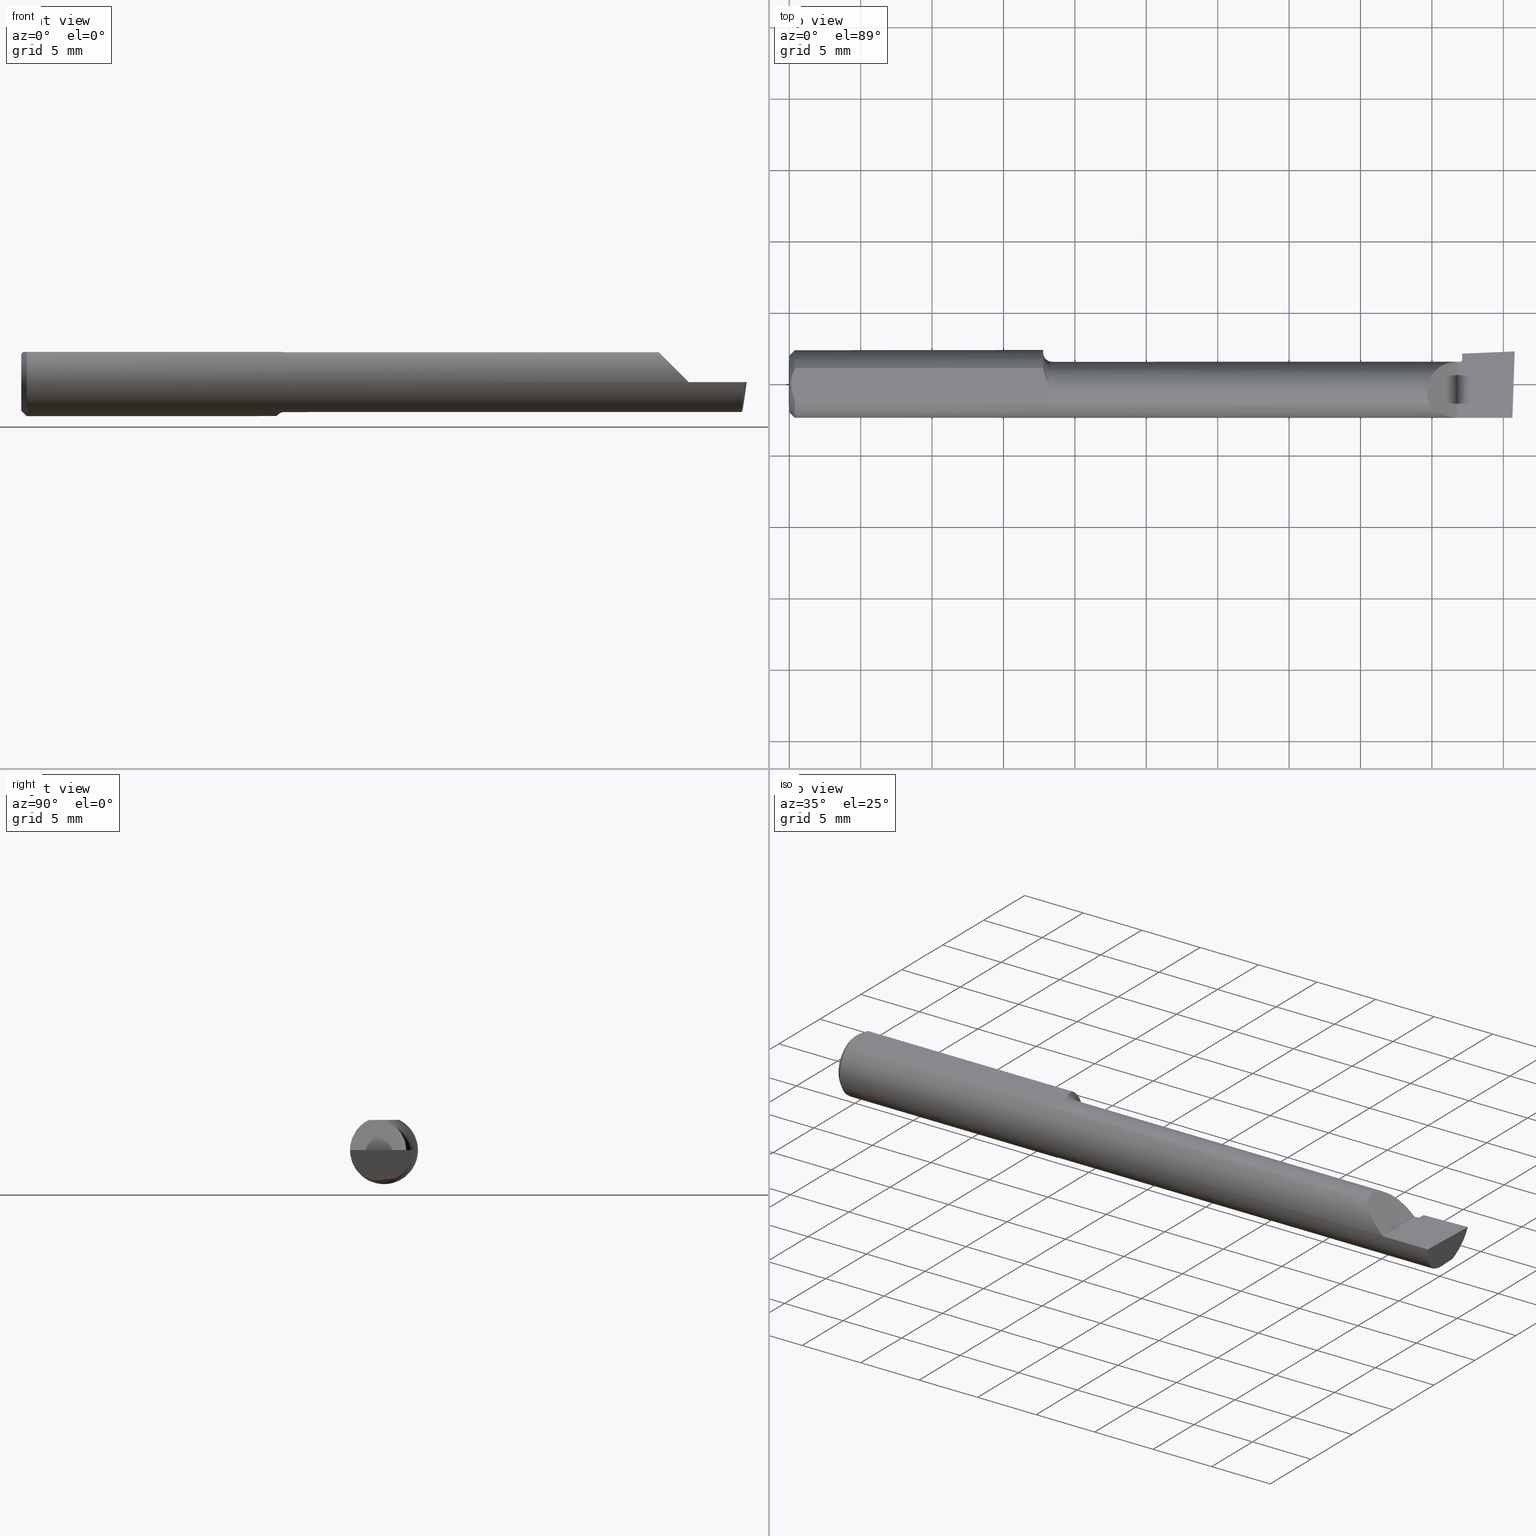
[diagram: canonical four-view strip — front | top / right | iso, engineering-drawing reading convention]
A machine part, canonical four-view strip (front | top / right | iso — engineering-drawing reading convention). The complete STEP part file that produces these views, byte-faithful:
ISO-10303-21;
HEADER;
FILE_DESCRIPTION (( 'STEP AP203' ),
    '1' );
FILE_NAME ('210243-BB1812.STEP',
    '2024-04-17T22:08:03',
    ( '' ),
    ( '' ),
    'SwSTEP 2.0',
    'SolidWorks 2022',
    '' );
FILE_SCHEMA (( 'CONFIG_CONTROL_DESIGN' ));
ENDSEC;

DATA;
#1 = DIRECTION ( 'NONE',  ( 0.000000000000000000, 0.000000000000000000, -1.000000000000000000 ) ) ;
#2 = ORIENTED_EDGE ( 'NONE', *, *, #258, .F. ) ;
#3 = LOCAL_TIME ( 15, 8, 3.000000000000000000, #482 ) ;
#4 = DIRECTION ( 'NONE',  ( 0.000000000000000000, -1.000000000000000000, 0.000000000000000000 ) ) ;
#5 = ORIENTED_EDGE ( 'NONE', *, *, #629, .F. ) ;
#6 = CARTESIAN_POINT ( 'NONE',  ( 0.7106015631409865474, -0.03939123913276627170, -0.08506160841583897125 ) ) ;
#7 = DIRECTION ( 'NONE',  ( -1.000000000000000000, -0.000000000000000000, -0.000000000000000000 ) ) ;
#8 = FACE_OUTER_BOUND ( 'NONE', #498, .T. ) ;
#9 = B_SPLINE_CURVE_WITH_KNOTS ( 'NONE', 3,
 ( #469, #97, #582, #379 ),
 .UNSPECIFIED., .F., .F.,
 ( 4, 4 ),
 ( 0.001281379682259375539, 0.001681479309652208218 ),
 .UNSPECIFIED. ) ;
#10 = CARTESIAN_POINT ( 'NONE',  ( 1.986324320446372305, -0.01381836679759350546, -0.08208644312275988064 ) ) ;
#11 = VERTEX_POINT ( 'NONE', #101 ) ;
#12 = EDGE_CURVE ( 'NONE', #231, #600, #418, .T. ) ;
#13 = CARTESIAN_POINT ( 'NONE',  ( 1.852369559014393374, -0.004255493194176700709, -0.08124980009172969031 ) ) ;
#14 = VECTOR ( 'NONE', #535, 39.37007874015748143 ) ;
#15 = AXIS2_PLACEMENT_3D ( 'NONE', #122, #220, #307 ) ;
#16 = ORIENTED_EDGE ( 'NONE', *, *, #245, .F. ) ;
#17 = DIRECTION ( 'NONE',  ( -1.000000000000000000, -0.000000000000000000, -0.000000000000000000 ) ) ;
#18 = ORIENTED_EDGE ( 'NONE', *, *, #259, .F. ) ;
#19 = APPROVAL_STATUS ( 'not_yet_approved' ) ;
#20 = CARTESIAN_POINT ( 'NONE',  ( 1.906245324762311455, 0.08577087285469074673, -1.868634782302818344E-17 ) ) ;
#21 = CARTESIAN_POINT ( 'NONE',  ( 1.985638364069036266, -0.02892578711483840409, -0.08340817113563980811 ) ) ;
#22 = VECTOR ( 'NONE', #270, 39.37007874015748143 ) ;
#23 = APPROVAL_STATUS ( 'not_yet_approved' ) ;
#24 = CARTESIAN_POINT ( 'NONE',  ( 1.988502654630791344, 0.03415700188930223535, -0.07788914223418023919 ) ) ;
#25 = FACE_OUTER_BOUND ( 'NONE', #148, .T. ) ;
#26 = CARTESIAN_POINT ( 'NONE',  ( 0.7165794261439658586, -0.02814343689618097749, 0.08360000000000003539 ) ) ;
#27 = CARTESIAN_POINT ( 'NONE',  ( 1.840000000000000080, -0.09359807690332104524, 0.0005999999999995612792 ) ) ;
#28 = CARTESIAN_POINT ( 'NONE',  ( 0.01500000000000024925, 0.04209513035969833505, 0.08360000000000004927 ) ) ;
#29 = CARTESIAN_POINT ( 'NONE',  ( 1.988502654630791344, 0.03415700188930223535, -0.07788914223418023919 ) ) ;
#30 = PLANE ( 'NONE',  #448 ) ;
#31 = B_SPLINE_CURVE_WITH_KNOTS ( 'NONE', 3,
 ( #150, #56, #244, #13, #342, #252 ),
 .UNSPECIFIED., .F., .F.,
 ( 4, 2, 4 ),
 ( 0.0003895378991270387402, 0.0007684350305820206780, 0.001147332162037002562 ),
 .UNSPECIFIED. ) ;
#32 = DIRECTION ( 'NONE',  ( 0.000000000000000000, 0.08715574274765137963, -0.9961946980917462113 ) ) ;
#33 = CC_DESIGN_PERSON_AND_ORGANIZATION_ASSIGNMENT ( #392, #551, ( #225 ) ) ;
#34 = CARTESIAN_POINT ( 'NONE',  ( 1.990029385046014232, -0.09360000000000003040, -0.02942396326758906638 ) ) ;
#35 = ADVANCED_FACE ( 'NONE', ( #8 ), #569, .F. ) ;
#36 = VERTEX_POINT ( 'NONE', #454 ) ;
#37 = EDGE_CURVE ( 'NONE', #90, #231, #105, .T. ) ;
#38 = DIRECTION ( 'NONE',  ( -1.000000000000000000, 4.268512490100411279E-18, 0.000000000000000000 ) ) ;
#39 = PLANE ( 'NONE',  #391 ) ;
#40 = ORIENTED_EDGE ( 'NONE', *, *, #277, .T. ) ;
#41 = CARTESIAN_POINT ( 'NONE',  ( 0.7192658722290595774, -0.05486689380272752325, -0.07584023785067360579 ) ) ;
#42 = CIRCLE ( 'NONE', #81, 0.1073999999999997734 ) ;
#43 = CARTESIAN_POINT ( 'NONE',  ( 2.000000000000000000, -0.01381836679759350546, -0.08208644312275988064 ) ) ;
#44 = ORIENTED_EDGE ( 'NONE', *, *, #519, .T. ) ;
#45 = CARTESIAN_POINT ( 'NONE',  ( 1.840000000000000080, 0.09359999999999998876, -1.868634782302818344E-17 ) ) ;
#46 = DIRECTION ( 'NONE',  ( 4.268512490100411279E-18, 1.000000000000000000, 0.000000000000000000 ) ) ;
#47 = ORIENTED_EDGE ( 'NONE', *, *, #149, .T. ) ;
#48 = ORIENTED_EDGE ( 'NONE', *, *, #365, .T. ) ;
#49 = AXIS2_PLACEMENT_3D ( 'NONE', #476, #53, #242 ) ;
#50 = CC_DESIGN_APPROVAL ( #602, ( #260 ) ) ;
#51 = CARTESIAN_POINT ( 'NONE',  ( 2.000000000000000000, 0.04209513035969836975, 0.08360000000000000764 ) ) ;
#52 = AXIS2_PLACEMENT_3D ( 'NONE', #359, #32, #269 ) ;
#53 = DIRECTION ( 'NONE',  ( -1.000000000000000000, 4.268512490100411279E-18, -0.000000000000000000 ) ) ;
#54 = LENGTH_MEASURE_WITH_UNIT ( LENGTH_MEASURE( 0.02539999999999999897 ), #288 );
#55 = APPROVAL ( #546, 'UNSPECIFIED' ) ;
#56 = CARTESIAN_POINT ( 'NONE',  ( 1.854999999999999094, 0.01028169154338317258, -0.07997796122761119397 ) ) ;
#57 = VERTEX_POINT ( 'NONE', #603 ) ;
#58 = EDGE_CURVE ( 'NONE', #109, #254, #276, .T. ) ;
#59 = CALENDAR_DATE ( 2024, 17, 4 ) ;
#60 = DIRECTION ( 'NONE',  ( 0.000000000000000000, 0.000000000000000000, 1.000000000000000000 ) ) ;
#61 = ORIENTED_EDGE ( 'NONE', *, *, #629, .T. ) ;
#62 = APPROVAL_DATE_TIME ( #255, #602 ) ;
#63 = CARTESIAN_POINT ( 'NONE',  ( 1.766692136939142621, -0.05743333333333168478, 0.07390786306085683766 ) ) ;
#64 = VECTOR ( 'NONE', #517, 39.37007874015748143 ) ;
#65 = ORIENTED_EDGE ( 'NONE', *, *, #420, .T. ) ;
#66 = ORIENTED_EDGE ( 'NONE', *, *, #622, .F. ) ;
#67 = PERSON_AND_ORGANIZATION ( #507, #201 ) ;
#68 = CARTESIAN_POINT ( 'NONE',  ( 1.985817582123950320, -0.05743333333333396767, -0.07390786306085539437 ) ) ;
#69 = PERSON_AND_ORGANIZATION ( #507, #201 ) ;
#70 = CARTESIAN_POINT ( 'NONE',  ( 1.840000000000000080, 0.06139999999999985053, -1.868634782302818344E-17 ) ) ;
#71 = VERTEX_POINT ( 'NONE', #70 ) ;
#72 = LINE ( 'NONE', #514, #329 ) ;
#73 = CARTESIAN_POINT ( 'NONE',  ( 0.7129080780883870760, -0.002953318044166630772, 0.08360000000000003539 ) ) ;
#74 = FACE_OUTER_BOUND ( 'NONE', #301, .T. ) ;
#75 = CARTESIAN_POINT ( 'NONE',  ( 0.7130603284648847628, -0.03865296673493581053, 0.08360000000000003539 ) ) ;
#76 = PLANE ( 'NONE',  #456 ) ;
#77 = CARTESIAN_POINT ( 'NONE',  ( 1.849999999999999867, 0.06139999999999991298, -1.868634782302819884E-17 ) ) ;
#78 = LOCAL_TIME ( 15, 8, 3.000000000000000000, #396 ) ;
#79 = APPROVAL ( #19, 'UNSPECIFIED' ) ;
#80 = PLANE ( 'NONE',  #52 ) ;
#81 = AXIS2_PLACEMENT_3D ( 'NONE', #471, #235, #4 ) ;
#82 = PLANE ( 'NONE',  #539 ) ;
#83 = EDGE_CURVE ( 'NONE', #278, #625, #197, .T. ) ;
#84 = ORIENTED_EDGE ( 'NONE', *, *, #585, .F. ) ;
#85 = DIRECTION ( 'NONE',  ( -1.000000000000000000, 4.268512490100411279E-18, -0.000000000000000000 ) ) ;
#86 = ORIENTED_EDGE ( 'NONE', *, *, #608, .T. ) ;
#87 = CARTESIAN_POINT ( 'NONE',  ( 0.000000000000000000, 0.000000000000000000, 0.000000000000000000 ) ) ;
#88 = EDGE_CURVE ( 'NONE', #222, #490, #341, .T. ) ;
#89 = CARTESIAN_POINT ( 'NONE',  ( 1.784610455782698724, -0.08049145269555457727, 0.05598954421730131109 ) ) ;
#90 = VERTEX_POINT ( 'NONE', #77 ) ;
#91 = CARTESIAN_POINT ( 'NONE',  ( 0.7001683542877240596, 0.03731812126116981071, -0.08648697983258404887 ) ) ;
#92 = AXIS2_PLACEMENT_3D ( 'NONE', #612, #211, #304 ) ;
#93 = CC_DESIGN_APPROVAL ( #79, ( #357 ) ) ;
#94 = CARTESIAN_POINT ( 'NONE',  ( 1.854999999999999760, 0.06639999999999990354, 0.000000000000000000 ) ) ;
#95 = ORIENTED_EDGE ( 'NONE', *, *, #113, .F. ) ;
#96 = CARTESIAN_POINT ( 'NONE',  ( 0.005000000000000217812, 1.023804700982173805E-17, 0.08360000000000000764 ) ) ;
#97 = CARTESIAN_POINT ( 'NONE',  ( 0.6999999999999999556, 0.05132964582701134842, 0.07844505570132466465 ) ) ;
#98 = ORIENTED_EDGE ( 'NONE', *, *, #408, .F. ) ;
#99 = CARTESIAN_POINT ( 'NONE',  ( 0.01499999999997154825, -0.04209513035984145668, 0.08360000000000000764 ) ) ;
#100 = DIRECTION ( 'NONE',  ( 0.000000000000000000, -1.000000000000000000, 0.000000000000000000 ) ) ;
#101 = CARTESIAN_POINT ( 'NONE',  ( 1.766692136939142621, -0.05743333333333168478, 0.07390786306085683766 ) ) ;
#102 = CC_DESIGN_PERSON_AND_ORGANIZATION_ASSIGNMENT ( #250, #549, ( #357 ) ) ;
#103 = DIRECTION ( 'NONE',  ( -0.9919506264397697226, 0.03437759245049861606, 0.1218693392246628648 ) ) ;
#104 = EDGE_CURVE ( 'NONE', #338, #11, #119, .T. ) ;
#105 = CIRCLE ( 'NONE', #536, 0.004999999999999810152 ) ;
#106 = ORIENTED_EDGE ( 'NONE', *, *, #107, .T. ) ;
#107 = EDGE_CURVE ( 'NONE', #231, #121, #312, .T. ) ;
#108 = CARTESIAN_POINT ( 'NONE',  ( 0.01500000000000024925, 0.000000000000000000, 0.000000000000000000 ) ) ;
#109 = VERTEX_POINT ( 'NONE', #28 ) ;
#110 = PERSON_AND_ORGANIZATION_ROLE ( 'design_supplier' ) ;
#111 =( BOUNDED_CURVE ( )  B_SPLINE_CURVE ( 3, ( #589, #440, #592, #63 ),
 .UNSPECIFIED., .F., .T. ) 
 B_SPLINE_CURVE_WITH_KNOTS ( ( 4, 4 ),
 ( 4.719670598130175421, 6.741181949416923835 ),
 .UNSPECIFIED. ) 
 CURVE ( )  GEOMETRIC_REPRESENTATION_ITEM ( )  RATIONAL_B_SPLINE_CURVE ( ( 1.000000000000000000, 0.6874804262519154108, 0.6874804262519154108, 1.000000000000000000 ) ) 
 REPRESENTATION_ITEM ( '' )  );
#112 = DIRECTION ( 'NONE',  ( -0.000000000000000000, 1.000000000000000000, -0.000000000000000000 ) ) ;
#113 = EDGE_CURVE ( 'NONE', #579, #57, #120, .T. ) ;
#114 = ORIENTED_EDGE ( 'NONE', *, *, #124, .F. ) ;
#115 = DATE_AND_TIME ( #305, #368 ) ;
#116 = VERTEX_POINT ( 'NONE', #217 ) ;
#117 = CARTESIAN_POINT ( 'NONE',  ( 0.7117174437742903592, -0.04209513035984613349, 0.08360000000000000764 ) ) ;
#118 = PERSON_AND_ORGANIZATION_ROLE ( 'classification_officer' ) ;
#119 = LINE ( 'NONE', #311, #22 ) ;
#120 = B_SPLINE_CURVE_WITH_KNOTS ( 'NONE', 3,
 ( #351, #550, #171, #73, #412, #452, #358, #404, #26, #126, #75, #117 ),
 .UNSPECIFIED., .F., .F.,
 ( 4, 2, 2, 2, 2, 4 ),
 ( 0.01092621138090826491, 0.01205121053081291763, 0.01233246031828908081, 0.01261371010576524225, 0.01289495989324140543, 0.01317620968071756687 ),
 .UNSPECIFIED. ) ;
#121 = VERTEX_POINT ( 'NONE', #615 ) ;
#122 = CARTESIAN_POINT ( 'NONE',  ( 1.829999999999999849, -0.02860000000000001083, 0.02500000000000000139 ) ) ;
#123 = CARTESIAN_POINT ( 'NONE',  ( 2.000000000000000444, 0.08978918869558996652, 4.097771990496394828E-16 ) ) ;
#124 = EDGE_CURVE ( 'NONE', #121, #625, #480, .T. ) ;
#125 = CARTESIAN_POINT ( 'NONE',  ( 0.7144594359606575296, -0.04855549187618778822, 0.08009376993471978290 ) ) ;
#126 = CARTESIAN_POINT ( 'NONE',  ( 0.7144025135469247445, -0.03521055180197240481, 0.08360000000000000764 ) ) ;
#127 = DIRECTION ( 'NONE',  ( 0.000000000000000000, 0.000000000000000000, -1.000000000000000000 ) ) ;
#128 = CARTESIAN_POINT ( 'NONE',  ( 1.859368142709067584, 0.08375808967248928039, -1.868634782302818344E-17 ) ) ;
#129 = DIRECTION ( 'NONE',  ( 0.000000000000000000, -1.000000000000000000, 0.000000000000000000 ) ) ;
#130 = CARTESIAN_POINT ( 'NONE',  ( 1.985817582123950320, -0.05743333333333396767, -0.07390786306085539437 ) ) ;
#131 = EDGE_LOOP ( 'NONE', ( #184, #594, #326, #472 ) ) ;
#132 = CARTESIAN_POINT ( 'NONE',  ( 1.899425750015936831, 0.02544799809752950476, -0.07865108133656457945 ) ) ;
#133 = AXIS2_PLACEMENT_3D ( 'NONE', #283, #527, #46 ) ;
#134 = ORIENTED_EDGE ( 'NONE', *, *, #477, .T. ) ;
#135 = EDGE_CURVE ( 'NONE', #116, #533, #401, .T. ) ;
#136 = APPLICATION_CONTEXT ( 'configuration controlled 3d designs of mechanical parts and assemblies' ) ;
#137 = ORIENTED_EDGE ( 'NONE', *, *, #212, .T. ) ;
#138 = CARTESIAN_POINT ( 'NONE',  ( 0.7064249347091184905, -0.02512912529236663653, -0.09074268482284265913 ) ) ;
#139 = EDGE_LOOP ( 'NONE', ( #98, #467, #619, #347, #44 ) ) ;
#140 = CARTESIAN_POINT ( 'NONE',  ( 0.000000000000000000, 0.000000000000000000, 0.000000000000000000 ) ) ;
#141 = APPROVAL_PERSON_ORGANIZATION ( #67, #55, #598 ) ;
#142 = DIRECTION ( 'NONE',  ( 0.000000000000000000, 0.000000000000000000, 1.000000000000000000 ) ) ;
#143 = ADVANCED_BREP_SHAPE_REPRESENTATION ( '210243-BB1812', ( #173, #209 ), #350 ) ;
#144 = ORIENTED_EDGE ( 'NONE', *, *, #198, .F. ) ;
#145 = CARTESIAN_POINT ( 'NONE',  ( 0.009483685532750397995, -0.02856415438847177343, 0.08359999999999997988 ) ) ;
#146 = DIRECTION ( 'NONE',  ( 1.000000000000000000, -0.000000000000000000, -0.000000000000000000 ) ) ;
#147 = CC_DESIGN_DATE_AND_TIME_ASSIGNMENT ( #153, #297, ( #260 ) ) ;
#148 = EDGE_LOOP ( 'NONE', ( #179, #430, #114, #445, #203, #18, #566 ) ) ;
#149 = EDGE_CURVE ( 'NONE', #463, #380, #431, .T. ) ;
#150 = CARTESIAN_POINT ( 'NONE',  ( 1.854999999999999760, 0.01520836038880596375, -0.07954693355469039107 ) ) ;
#151 = EDGE_CURVE ( 'NONE', #205, #109, #316, .T. ) ;
#152 = ORIENTED_EDGE ( 'NONE', *, *, #229, .F. ) ;
#153 = DATE_AND_TIME ( #257, #621 ) ;
#154 = AXIS2_PLACEMENT_3D ( 'NONE', #483, #295, #397 ) ;
#155 = DIRECTION ( 'NONE',  ( 0.000000000000000000, 0.000000000000000000, -1.000000000000000000 ) ) ;
#156 = ORIENTED_EDGE ( 'NONE', *, *, #245, .T. ) ;
#157 = APPROVAL_DATE_TIME ( #115, #79 ) ;
#158 = CARTESIAN_POINT ( 'NONE',  ( 0.01500000000000024925, 0.000000000000000000, 0.000000000000000000 ) ) ;
#159 = ORIENTED_EDGE ( 'NONE', *, *, #420, .F. ) ;
#160 = ORIENTED_EDGE ( 'NONE', *, *, #389, .F. ) ;
#161 = PERSON_AND_ORGANIZATION_ROLE ( 'design_owner' ) ;
#162 = AXIS2_PLACEMENT_3D ( 'NONE', #367, #323, #142 ) ;
#163 = CARTESIAN_POINT ( 'NONE',  ( 0.005976064474242861677, 0.01450833282979354169, 0.08359999999999997988 ) ) ;
#164 = VECTOR ( 'NONE', #614, 39.37007874015748854 ) ;
#165 = DIMENSIONAL_EXPONENTS ( 1.000000000000000000, 0.000000000000000000, 0.000000000000000000, 0.000000000000000000, 0.000000000000000000, 0.000000000000000000, 0.000000000000000000 ) ;
#166 = CARTESIAN_POINT ( 'NONE',  ( 1.849999999999999867, 0.06639999999999991742, 0.000000000000000000 ) ) ;
#167 = CYLINDRICAL_SURFACE ( 'NONE', #154, 0.08239999999999984837 ) ;
#168 = EDGE_CURVE ( 'NONE', #380, #439, #610, .T. ) ;
#169 = CARTESIAN_POINT ( 'NONE',  ( 0.01203159747439047286, 0.03549478314559913888, 0.08360000000000000764 ) ) ;
#170 = CARTESIAN_POINT ( 'NONE',  ( 1.840000000000000080, 0.09359999999999998876, -1.868634782302818344E-17 ) ) ;
#171 = CARTESIAN_POINT ( 'NONE',  ( 0.7063128140231219598, 0.01393385481374773138, 0.08360000000000000764 ) ) ;
#172 = AXIS2_PLACEMENT_3D ( 'NONE', #177, #413, #567 ) ;
#173 = MANIFOLD_SOLID_BREP ( 'Front', #593 ) ;
#174 = DIRECTION ( 'NONE',  ( -4.268512490100411279E-18, -1.000000000000000000, 0.000000000000000000 ) ) ;
#175 = CARTESIAN_POINT ( 'NONE',  ( 1.849999999999999867, -0.02099999999999998743, 0.000000000000000000 ) ) ;
#176 = DIRECTION ( 'NONE',  ( 0.000000000000000000, -1.000000000000000000, 0.000000000000000000 ) ) ;
#177 = CARTESIAN_POINT ( 'NONE',  ( 0.000000000000000000, 0.000000000000000000, 0.000000000000000000 ) ) ;
#178 = CARTESIAN_POINT ( 'NONE',  ( 1.766692136939142621, -0.05743333333333168478, 0.07390786306085683766 ) ) ;
#179 = ORIENTED_EDGE ( 'NONE', *, *, #135, .T. ) ;
#180 = CONICAL_SURFACE ( 'NONE', #15, 0.1138748889330658265, 0.04188790204786419641 ) ;
#181 = CARTESIAN_POINT ( 'NONE',  ( 0.6999999999999999556, 0.05554285714285593645, 0.07533890774631855913 ) ) ;
#182 = AXIS2_PLACEMENT_3D ( 'NONE', #175, #261, #266 ) ;
#183 = CARTESIAN_POINT ( 'NONE',  ( 3.517254291842732546E-19, 0.06139999999999985747, -1.868634782302818344E-17 ) ) ;
#184 = ORIENTED_EDGE ( 'NONE', *, *, #83, .F. ) ;
#185 = ORIENTED_EDGE ( 'NONE', *, *, #279, .F. ) ;
#186 = DIRECTION ( 'NONE',  ( -0.000000000000000000, 0.000000000000000000, 1.000000000000000000 ) ) ;
#187 = CARTESIAN_POINT ( 'NONE',  ( 1.840000000000000080, -0.09359807690332104524, 0.0005999999999995612792 ) ) ;
#188 = ORIENTED_EDGE ( 'NONE', *, *, #374, .F. ) ;
#189 = PLANE ( 'NONE',  #318 ) ;
#190 = DIRECTION ( 'NONE',  ( -1.000000000000000000, 4.268512490100411279E-18, -0.000000000000000000 ) ) ;
#191 = ORIENTED_EDGE ( 'NONE', *, *, #37, .T. ) ;
#192 = CARTESIAN_POINT ( 'NONE',  ( 0.7201695385975412922, -0.05567765305827225564, -0.07524373138753884249 ) ) ;
#193 = ADVANCED_FACE ( 'NONE', ( #362 ), #39, .F. ) ;
#194 = CYLINDRICAL_SURFACE ( 'NONE', #237, 0.09360000000000001652 ) ;
#195 = ORIENTED_EDGE ( 'NONE', *, *, #229, .T. ) ;
#196 = DIRECTION ( 'NONE',  ( -1.000000000000000000, 4.268512490100411279E-18, -0.000000000000000000 ) ) ;
#197 =( BOUNDED_CURVE ( )  B_SPLINE_CURVE ( 3, ( #24, #268, #214, #123 ),
 .UNSPECIFIED., .F., .T. ) 
 B_SPLINE_CURVE_WITH_KNOTS ( ( 4, 4 ),
 ( 3.960321937159471783, 4.773880858322181453 ),
 .UNSPECIFIED. ) 
 CURVE ( )  GEOMETRIC_REPRESENTATION_ITEM ( )  RATIONAL_B_SPLINE_CURVE ( ( 1.000000000000000000, 0.9455998676827520599, 0.9455998676827520599, 1.000000000000000000 ) ) 
 REPRESENTATION_ITEM ( '' )  );
#198 = EDGE_CURVE ( 'NONE', #463, #533, #492, .T. ) ;
#199 = APPROVAL_DATE_TIME ( #302, #55 ) ;
#200 = AXIS2_PLACEMENT_3D ( 'NONE', #555, #306, #405 ) ;
#201 = ORGANIZATION ( 'UNSPECIFIED', 'UNSPECIFIED', '' ) ;
#202 = CARTESIAN_POINT ( 'NONE',  ( 0.000000000000000000, 1.054420894065869948E-17, 0.07859999999999980891 ) ) ;
#203 = ORIENTED_EDGE ( 'NONE', *, *, #37, .F. ) ;
#204 = DIRECTION ( 'NONE',  ( 1.000000000000000000, 0.000000000000000000, 0.000000000000000000 ) ) ;
#205 = VERTEX_POINT ( 'NONE', #230 ) ;
#206 = DATE_TIME_ROLE ( 'creation_date' ) ;
#207 = CARTESIAN_POINT ( 'NONE',  ( 1.953122615924094641, 0.08778111608944104416, -1.868634782302818344E-17 ) ) ;
#208 = AXIS2_PLACEMENT_3D ( 'NONE', #158, #146, #346 ) ;
#209 = AXIS2_PLACEMENT_3D ( 'NONE', #87, #228, #422 ) ;
#210 = PRODUCT_RELATED_PRODUCT_CATEGORY ( 'detail', '', ( #530 ) ) ;
#211 = DIRECTION ( 'NONE',  ( 1.000000000000000000, -4.268512490100411279E-18, 0.000000000000000000 ) ) ;
#212 = EDGE_CURVE ( 'NONE', #597, #71, #292, .T. ) ;
#213 = FACE_OUTER_BOUND ( 'NONE', #131, .T. ) ;
#214 = CARTESIAN_POINT ( 'NONE',  ( 1.995700996757002965, 0.08264169502808201007, -0.03297536001410257545 ) ) ;
#215 = ADVANCED_FACE ( 'NONE', ( #565 ), #82, .F. ) ;
#216 = CARTESIAN_POINT ( 'NONE',  ( 0.7249999999999998668, -0.02099999999999999437, 0.000000000000000000 ) ) ;
#217 = CARTESIAN_POINT ( 'NONE',  ( 1.840000000000000080, -0.09359999999999998876, -1.868634782302818344E-17 ) ) ;
#218 = DIRECTION ( 'NONE',  ( -0.7071067811865474617, 0.000000000000000000, 0.7071067811865474617 ) ) ;
#219 = CARTESIAN_POINT ( 'NONE',  ( 1.959014883581128075, 0.09122042049864560742, -0.3340004505562900183 ) ) ;
#220 = DIRECTION ( 'NONE',  ( 1.000000000000000000, 4.268512490100411279E-18, 0.000000000000000000 ) ) ;
#221 = CARTESIAN_POINT ( 'NONE',  ( 1.993644362309209273, -0.09359999999999998876, -1.868634782302818344E-17 ) ) ;
#222 = VERTEX_POINT ( 'NONE', #523 ) ;
#223 = CARTESIAN_POINT ( 'NONE',  ( 0.7173920313944248672, -0.05284074569802003907, 0.07727701817164513154 ) ) ;
#224 = FACE_OUTER_BOUND ( 'NONE', #538, .T. ) ;
#225 = PRODUCT_DEFINITION ( 'UNKNOWN', '', #357, #553 ) ;
#226 = CONICAL_SURFACE ( 'NONE', #604, 0.09360000000000001652, 0.7853981633974466137 ) ;
#227 = ORIENTED_EDGE ( 'NONE', *, *, #212, .F. ) ;
#228 = DIRECTION ( 'NONE',  ( 0.000000000000000000, 0.000000000000000000, 1.000000000000000000 ) ) ;
#229 = EDGE_CURVE ( 'NONE', #481, #11, #489, .T. ) ;
#230 = CARTESIAN_POINT ( 'NONE',  ( 0.01500000000000024925, 0.000000000000000000, -0.09360000000000001652 ) ) ;
#231 = VERTEX_POINT ( 'NONE', #94 ) ;
#232 = CARTESIAN_POINT ( 'NONE',  ( 0.7046089870107814512, -0.01465891424109005622, -0.09304066311739291051 ) ) ;
#233 = VERTEX_POINT ( 'NONE', #624 ) ;
#234 =( NAMED_UNIT ( * ) PLANE_ANGLE_UNIT ( ) SI_UNIT ( $, .RADIAN. ) );
#235 = DIRECTION ( 'NONE',  ( -1.000000000000000000, 4.268512490100411279E-18, -0.000000000000000000 ) ) ;
#236 = EDGE_LOOP ( 'NONE', ( #390, #470, #513, #444, #66 ) ) ;
#237 = AXIS2_PLACEMENT_3D ( 'NONE', #434, #7, #60 ) ;
#238 = CARTESIAN_POINT ( 'NONE',  ( 0.7223471907399622305, -0.05697548597935443021, -0.07426583441000186858 ) ) ;
#239 = ADVANCED_FACE ( 'NONE', ( #224 ), #419, .T. ) ;
#240 = AXIS2_PLACEMENT_3D ( 'NONE', #335, #190, #100 ) ;
#241 = DIRECTION ( 'NONE',  ( 0.000000000000000000, -1.000000000000000000, 0.000000000000000000 ) ) ;
#242 = DIRECTION ( 'NONE',  ( 0.000000000000000000, -1.000000000000000000, 0.000000000000000000 ) ) ;
#243 = APPLICATION_PROTOCOL_DEFINITION ( 'international standard', 'config_control_design', 1994, #526 ) ;
#244 = CARTESIAN_POINT ( 'NONE',  ( 1.854258593080915452, 0.005393480738209605399, -0.08040562425798880586 ) ) ;
#245 = EDGE_CURVE ( 'NONE', #490, #579, #9, .T. ) ;
#246 = VERTEX_POINT ( 'NONE', #518 ) ;
#247 = APPROVAL_ROLE ( '' ) ;
#248 = LINE ( 'NONE', #388, #14 ) ;
#249 = ORIENTED_EDGE ( 'NONE', *, *, #585, .T. ) ;
#250 = PERSON_AND_ORGANIZATION ( #507, #201 ) ;
#251 = CIRCLE ( 'NONE', #172, 0.07859999999999980891 ) ;
#252 = CARTESIAN_POINT ( 'NONE',  ( 1.849999999999999867, -0.01381836679759354015, -0.08208644312275979738 ) ) ;
#253 = ORIENTED_EDGE ( 'NONE', *, *, #608, .F. ) ;
#254 = VERTEX_POINT ( 'NONE', #618 ) ;
#255 = DATE_AND_TIME ( #59, #581 ) ;
#256 = CARTESIAN_POINT ( 'NONE',  ( 1.985465187176708168, -0.04383112193845223326, -0.08061315639902359720 ) ) ;
#257 = CALENDAR_DATE ( 2024, 17, 4 ) ;
#258 = EDGE_CURVE ( 'NONE', #116, #481, #366, .T. ) ;
#259 = EDGE_CURVE ( 'NONE', #71, #90, #515, .T. ) ;
#260 = SECURITY_CLASSIFICATION ( '', '', #491 ) ;
#261 = DIRECTION ( 'NONE',  ( -1.000000000000000000, 4.268512490100411279E-18, -0.000000000000000000 ) ) ;
#262 = VECTOR ( 'NONE', #503, 39.37007874015748143 ) ;
#263 = ORIENTED_EDGE ( 'NONE', *, *, #353, .F. ) ;
#264 = DIRECTION ( 'NONE',  ( -4.252269511376426926E-18, -0.9961946980917462113, -0.08715574274765137963 ) ) ;
#265 = ADVANCED_FACE ( 'NONE', ( #457 ), #30, .F. ) ;
#266 = DIRECTION ( 'NONE',  ( -4.268512490100411279E-18, -1.000000000000000000, 0.000000000000000000 ) ) ;
#267 = PLANE ( 'NONE',  #478 ) ;
#268 = CARTESIAN_POINT ( 'NONE',  ( 1.991648068465035282, 0.06303079732967827031, -0.06043205528099161034 ) ) ;
#269 = DIRECTION ( 'NONE',  ( 0.000000000000000000, 0.9961946980917462113, 0.08715574274765137963 ) ) ;
#270 = DIRECTION ( 'NONE',  ( 1.000000000000000000, -4.268512490100411279E-18, 0.000000000000000000 ) ) ;
#271 = AXIS2_PLACEMENT_3D ( 'NONE', #140, #375, #464 ) ;
#272 = CARTESIAN_POINT ( 'NONE',  ( 0.7249999999999998668, -0.05743333333333425911, 0.07390786306085517232 ) ) ;
#273 = ORIENTED_EDGE ( 'NONE', *, *, #135, .F. ) ;
#274 = FACE_OUTER_BOUND ( 'NONE', #421, .T. ) ;
#275 = CC_DESIGN_PERSON_AND_ORGANIZATION_ASSIGNMENT ( #543, #110, ( #357 ) ) ;
#276 = B_SPLINE_CURVE_WITH_KNOTS ( 'NONE', 3,
 ( #561, #169, #508, #163, #355, #409 ),
 .UNSPECIFIED., .F., .F.,
 ( 4, 2, 4 ),
 ( 0.001498230153270218050, 0.002046825164355170045, 0.002595420175440121824 ),
 .UNSPECIFIED. ) ;
#277 = EDGE_CURVE ( 'NONE', #109, #579, #474, .T. ) ;
#278 = VERTEX_POINT ( 'NONE', #428 ) ;
#279 = EDGE_CURVE ( 'NONE', #338, #36, #475, .T. ) ;
#280 = CARTESIAN_POINT ( 'NONE',  ( 0.6999999999999999556, 0.05554285714285593645, -0.07533890774631855913 ) ) ;
#281 = ORIENTED_EDGE ( 'NONE', *, *, #277, .F. ) ;
#282 = CARTESIAN_POINT ( 'NONE',  ( 0.7168167096662344528, -0.05223004665612089592, -0.07770207897814226938 ) ) ;
#283 = CARTESIAN_POINT ( 'NONE',  ( 0.6999999999999999556, 0.08639999999999978253, 0.000000000000000000 ) ) ;
#284 = ORIENTED_EDGE ( 'NONE', *, *, #88, .T. ) ;
#285 = B_SPLINE_CURVE_WITH_KNOTS ( 'NONE', 3,
 ( #383, #529, #238, #192, #41, #282, #473, #381, #6, #138, #232, #588, #580, #91, #584, #280 ),
 .UNSPECIFIED., .F., .F.,
 ( 4, 2, 2, 2, 2, 2, 2, 4 ),
 ( 1.968462504384461654E-07, 0.0001030101262769526308, 0.0002058234063034668345, 0.0004114499663564955131, 0.0008227030864625499429, 0.001645209326674658586, 0.002467715566886766795, 0.003290221807098875437 ),
 .UNSPECIFIED. ) ;
#286 = DIRECTION ( 'NONE',  ( 0.04518627981622180823, 0.9951771633164323561, 0.08706671999006802831 ) ) ;
#287 = VERTEX_POINT ( 'NONE', #202 ) ;
#288 =( LENGTH_UNIT ( ) NAMED_UNIT ( * ) SI_UNIT ( $, .METRE. ) );
#289 = CARTESIAN_POINT ( 'NONE',  ( 1.999939969396823392, 0.08805703149137224239, -1.868634782302818344E-17 ) ) ;
#290 = EDGE_LOOP ( 'NONE', ( #488, #516, #152 ) ) ;
#291 = VECTOR ( 'NONE', #596, 39.37007874015748143 ) ;
#292 = CIRCLE ( 'NONE', #339, 0.08239999999999984837 ) ;
#293 = CARTESIAN_POINT ( 'NONE',  ( 0.7249999999999998668, -0.05743333333333425911, 0.07390786306085517232 ) ) ;
#294 = ORIENTED_EDGE ( 'NONE', *, *, #258, .T. ) ;
#295 = DIRECTION ( 'NONE',  ( -1.000000000000000000, 4.268512490100411279E-18, -0.000000000000000000 ) ) ;
#296 = ORIENTED_EDGE ( 'NONE', *, *, #414, .T. ) ;
#297 = DATE_TIME_ROLE ( 'classification_date' ) ;
#298 = FACE_OUTER_BOUND ( 'NONE', #236, .T. ) ;
#299 = ORIENTED_EDGE ( 'NONE', *, *, #113, .T. ) ;
#300 = COORDINATED_UNIVERSAL_TIME_OFFSET ( 8, 0, .BEHIND. ) ;
#301 = EDGE_LOOP ( 'NONE', ( #106, #520, #424, #524 ) ) ;
#302 = DATE_AND_TIME ( #340, #3 ) ;
#303 = EDGE_CURVE ( 'NONE', #116, #71, #586, .T. ) ;
#304 = DIRECTION ( 'NONE',  ( 0.000000000000000000, 1.000000000000000000, 0.000000000000000000 ) ) ;
#305 = CALENDAR_DATE ( 2024, 17, 4 ) ;
#306 = DIRECTION ( 'NONE',  ( 1.000000000000000000, -0.000000000000000000, -0.000000000000000000 ) ) ;
#307 = DIRECTION ( 'NONE',  ( 0.000000000000000000, 1.000000000000000000, 0.000000000000000000 ) ) ;
#308 = ADVANCED_FACE ( 'NONE', ( #337 ), #167, .T. ) ;
#309 = VECTOR ( 'NONE', #286, 39.37007874015748854 ) ;
#310 = CONICAL_SURFACE ( 'NONE', #449, 0.09360000000000001652, 0.7853981633974466137 ) ;
#311 = CARTESIAN_POINT ( 'NONE',  ( 1.287499999999999867, -0.05743333333333396074, 0.07390786306085539437 ) ) ;
#312 = LINE ( 'NONE', #558, #262 ) ;
#313 = CARTESIAN_POINT ( 'NONE',  ( 0.7212365485754339556, -0.05647099370358384107, 0.07465896525111948012 ) ) ;
#314 = DIRECTION ( 'NONE',  ( 0.000000000000000000, 0.000000000000000000, 1.000000000000000000 ) ) ;
#315 = FACE_OUTER_BOUND ( 'NONE', #290, .T. ) ;
#316 = CIRCLE ( 'NONE', #200, 0.09360000000000001652 ) ;
#317 = CARTESIAN_POINT ( 'NONE',  ( 1.987230551035694903, -0.08066690435778495205, -0.05585320183932528798 ) ) ;
#318 = AXIS2_PLACEMENT_3D ( 'NONE', #45, #334, #186 ) ;
#319 = EDGE_LOOP ( 'NONE', ( #330, #385, #273, #294, #195, #348, #344, #406, #373, #590, #40, #16, #427, #253 ) ) ;
#320 = CC_DESIGN_PERSON_AND_ORGANIZATION_ASSIGNMENT ( #495, #118, ( #260 ) ) ;
#321 = CARTESIAN_POINT ( 'NONE',  ( 1.840000000000000080, 0.09359999999999998876, 0.0005999999999995612792 ) ) ;
#322 = ADVANCED_FACE ( 'NONE', ( #443 ), #194, .T. ) ;
#323 = DIRECTION ( 'NONE',  ( -1.000000000000000000, -0.000000000000000000, -0.000000000000000000 ) ) ;
#324 = EDGE_LOOP ( 'NONE', ( #95, #281, #416, #61, #160 ) ) ;
#325 =( NAMED_UNIT ( * ) SI_UNIT ( $, .STERADIAN. ) SOLID_ANGLE_UNIT ( ) );
#326 = ORIENTED_EDGE ( 'NONE', *, *, #484, .F. ) ;
#327 = CARTESIAN_POINT ( 'NONE',  ( 0.7001421765265185559, 0.04209513036078788711, 0.08360000000000000764 ) ) ;
#328 = EDGE_CURVE ( 'NONE', #463, #36, #248, .T. ) ;
#329 = VECTOR ( 'NONE', #264, 39.37007874015748143 ) ;
#330 = ORIENTED_EDGE ( 'NONE', *, *, #328, .F. ) ;
#331 = CARTESIAN_POINT ( 'NONE',  ( 0.005981945000908654025, -0.01453549720624409958, 0.08360000000000000764 ) ) ;
#332 = CARTESIAN_POINT ( 'NONE',  ( 1.840000000000000080, -0.02100000000000000477, 0.000000000000000000 ) ) ;
#333 = ORIENTED_EDGE ( 'NONE', *, *, #104, .T. ) ;
#334 = DIRECTION ( 'NONE',  ( -1.000000000000000000, 0.000000000000000000, -0.000000000000000000 ) ) ;
#335 = CARTESIAN_POINT ( 'NONE',  ( 1.849999999999999867, -0.02100000000000000477, 0.000000000000000000 ) ) ;
#336 = ORIENTED_EDGE ( 'NONE', *, *, #12, .T. ) ;
#337 = FACE_OUTER_BOUND ( 'NONE', #528, .T. ) ;
#338 = VERTEX_POINT ( 'NONE', #293 ) ;
#339 = AXIS2_PLACEMENT_3D ( 'NONE', #332, #423, #627 ) ;
#340 = CALENDAR_DATE ( 2024, 17, 4 ) ;
#341 = CIRCLE ( 'NONE', #92, 0.09360000000000001652 ) ;
#342 = CARTESIAN_POINT ( 'NONE',  ( 1.851189267392480575, -0.009008650726626332012, -0.08166564749177186722 ) ) ;
#343 = ADVANCED_FACE ( 'NONE', ( #298 ), #226, .T. ) ;
#344 = ORIENTED_EDGE ( 'NONE', *, *, #477, .F. ) ;
#345 = CALENDAR_DATE ( 2024, 17, 4 ) ;
#346 = DIRECTION ( 'NONE',  ( 0.000000000000000000, 0.000000000000000000, -1.000000000000000000 ) ) ;
#347 = ORIENTED_EDGE ( 'NONE', *, *, #554, .F. ) ;
#348 = ORIENTED_EDGE ( 'NONE', *, *, #104, .F. ) ;
#349 = DATE_AND_TIME ( #345, #78 ) ;
#350 =( GEOMETRIC_REPRESENTATION_CONTEXT ( 3 ) GLOBAL_UNCERTAINTY_ASSIGNED_CONTEXT ( ( #493 ) ) GLOBAL_UNIT_ASSIGNED_CONTEXT ( ( #534, #234, #325 ) ) REPRESENTATION_CONTEXT ( 'NONE', 'WORKASPACE' ) );
#351 = CARTESIAN_POINT ( 'NONE',  ( 0.7001421765265185559, 0.04209513036078788711, 0.08360000000000000764 ) ) ;
#352 = CARTESIAN_POINT ( 'NONE',  ( 1.986324320446372305, -0.01381836679759350546, -0.08208644312275988064 ) ) ;
#353 = EDGE_CURVE ( 'NONE', #597, #11, #111, .T. ) ;
#354 = LINE ( 'NONE', #557, #309 ) ;
#355 = CARTESIAN_POINT ( 'NONE',  ( 0.005000000000000212608, 0.007340705555993274310, 0.08360000000000000764 ) ) ;
#356 = DIRECTION ( 'NONE',  ( -0.000000000000000000, 0.000000000000000000, -1.000000000000000000 ) ) ;
#357 = PRODUCT_DEFINITION_FORMATION_WITH_SPECIFIED_SOURCE ( 'ANY', '', #530, .NOT_KNOWN. ) ;
#358 = CARTESIAN_POINT ( 'NONE',  ( 0.7173251875802011401, -0.01718587150066090002, 0.08360000000000003539 ) ) ;
#359 = CARTESIAN_POINT ( 'NONE',  ( 2.000000000000000000, -0.01381836679759350546, -0.08208644312275988064 ) ) ;
#360 = CARTESIAN_POINT ( 'NONE',  ( 1.854999999999999760, 0.08357052569068625092, -1.707404996040164512E-17 ) ) ;
#361 = CARTESIAN_POINT ( 'NONE',  ( 1.985817582123950320, -0.05743333333333396767, -0.07390786306085539437 ) ) ;
#362 = FACE_OUTER_BOUND ( 'NONE', #324, .T. ) ;
#363 = ORIENTED_EDGE ( 'NONE', *, *, #622, .T. ) ;
#364 = CARTESIAN_POINT ( 'NONE',  ( 1.993644362309209273, -0.09359999999999998876, -1.868634782302818344E-17 ) ) ;
#365 = EDGE_CURVE ( 'NONE', #600, #439, #31, .T. ) ;
#366 = CIRCLE ( 'NONE', #162, 0.09360000000000001652 ) ;
#367 = CARTESIAN_POINT ( 'NONE',  ( 1.840000000000000080, 0.000000000000000000, 0.000000000000000000 ) ) ;
#368 = LOCAL_TIME ( 15, 8, 3.000000000000000000, #595 ) ;
#369 = EDGE_LOOP ( 'NONE', ( #47, #547, #435, #382, #144 ) ) ;
#370 = VECTOR ( 'NONE', #512, 39.37007874015748143 ) ;
#371 = LINE ( 'NONE', #321, #613 ) ;
#372 = DIRECTION ( 'NONE',  ( 1.000000000000000000, 0.000000000000000000, 0.000000000000000000 ) ) ;
#373 = ORIENTED_EDGE ( 'NONE', *, *, #387, .T. ) ;
#374 = EDGE_CURVE ( 'NONE', #287, #254, #394, .T. ) ;
#375 = DIRECTION ( 'NONE',  ( -1.000000000000000000, -0.000000000000000000, -0.000000000000000000 ) ) ;
#376 = DIRECTION ( 'NONE',  ( -1.000000000000000000, 0.000000000000000000, 0.000000000000000000 ) ) ;
#377 = EDGE_LOOP ( 'NONE', ( #249, #542 ) ) ;
#378 = CARTESIAN_POINT ( 'NONE',  ( 2.000000000000000444, 0.08978918869558996652, 4.097771990496394828E-16 ) ) ;
#379 = CARTESIAN_POINT ( 'NONE',  ( 0.7001421765265185559, 0.04209513036078788711, 0.08360000000000000764 ) ) ;
#380 = VERTEX_POINT ( 'NONE', #10 ) ;
#381 = CARTESIAN_POINT ( 'NONE',  ( 0.7122440371897786893, -0.04400341751547394431, -0.08275374857139917995 ) ) ;
#382 = ORIENTED_EDGE ( 'NONE', *, *, #436, .F. ) ;
#383 = CARTESIAN_POINT ( 'NONE',  ( 0.7249999999999998668, -0.05743333333333425217, -0.07390786306085517232 ) ) ;
#384 = DIRECTION ( 'NONE',  ( 1.000000000000000000, -0.000000000000000000, -0.000000000000000000 ) ) ;
#385 = ORIENTED_EDGE ( 'NONE', *, *, #198, .T. ) ;
#386 = SHAPE_DEFINITION_REPRESENTATION ( #429, #143 ) ;
#387 = EDGE_CURVE ( 'NONE', #556, #205, #402, .T. ) ;
#388 = CARTESIAN_POINT ( 'NONE',  ( 1.287499999999999867, -0.05743333333333396074, -0.07390786306085539437 ) ) ;
#389 = EDGE_CURVE ( 'NONE', #57, #556, #487, .T. ) ;
#390 = ORIENTED_EDGE ( 'NONE', *, *, #552, .F. ) ;
#391 = AXIS2_PLACEMENT_3D ( 'NONE', #426, #466, #376 ) ;
#392 = PERSON_AND_ORGANIZATION ( #507, #201 ) ;
#393 = APPROVAL_PERSON_ORGANIZATION ( #69, #79, #247 ) ;
#394 = LINE ( 'NONE', #438, #291 ) ;
#395 = ORIENTED_EDGE ( 'NONE', *, *, #168, .F. ) ;
#396 = COORDINATED_UNIVERSAL_TIME_OFFSET ( 8, 0, .BEHIND. ) ;
#397 = DIRECTION ( 'NONE',  ( -4.268512490100411279E-18, -1.000000000000000000, 0.000000000000000000 ) ) ;
#398 = ORIENTED_EDGE ( 'NONE', *, *, #387, .F. ) ;
#399 = B_SPLINE_CURVE_WITH_KNOTS ( 'NONE', 3,
 ( #96, #572, #331, #145, #525, #99 ),
 .UNSPECIFIED., .F., .F.,
 ( 4, 2, 4 ),
 ( 0.002595420175440121824, 0.003143963582281870776, 0.003692506989123619295 ),
 .UNSPECIFIED. ) ;
#400 = APPLICATION_PROTOCOL_DEFINITION ( 'international standard', 'config_control_design', 1994, #136 ) ;
#401 = LINE ( 'NONE', #609, #403 ) ;
#402 = CIRCLE ( 'NONE', #208, 0.09360000000000001652 ) ;
#403 = VECTOR ( 'NONE', #446, 39.37007874015748143 ) ;
#404 = CARTESIAN_POINT ( 'NONE',  ( 0.7173689469072845881, -0.02449212022604174699, 0.08359999999999999376 ) ) ;
#405 = DIRECTION ( 'NONE',  ( 0.000000000000000000, 0.000000000000000000, -1.000000000000000000 ) ) ;
#406 = ORIENTED_EDGE ( 'NONE', *, *, #389, .T. ) ;
#407 = PLANE ( 'NONE',  #510 ) ;
#408 = EDGE_CURVE ( 'NONE', #380, #278, #354, .T. ) ;
#409 = CARTESIAN_POINT ( 'NONE',  ( 0.005000000000000217812, 1.023804700982173805E-17, 0.08360000000000000764 ) ) ;
#410 = DIRECTION ( 'NONE',  ( -4.268512490100411279E-18, -1.000000000000000000, 0.000000000000000000 ) ) ;
#411 = CC_DESIGN_SECURITY_CLASSIFICATION ( #260, ( #357 ) ) ;
#412 = CARTESIAN_POINT ( 'NONE',  ( 0.7142773916201955453, -0.006451795069408025954, 0.08360000000000003539 ) ) ;
#413 = DIRECTION ( 'NONE',  ( -1.000000000000000000, -0.000000000000000000, -0.000000000000000000 ) ) ;
#414 = EDGE_CURVE ( 'NONE', #490, #222, #42, .T. ) ;
#415 = DIRECTION ( 'NONE',  ( -0.7071067811865475727, 0.000000000000000000, -0.7071067811865475727 ) ) ;
#416 = ORIENTED_EDGE ( 'NONE', *, *, #58, .T. ) ;
#417 = CARTESIAN_POINT ( 'NONE',  ( 0.7230022073292465823, -0.05743333333450140882, 0.07390786305994839767 ) ) ;
#418 = CIRCLE ( 'NONE', #49, 0.08739999999999989444 ) ;
#419 = PLANE ( 'NONE',  #133 ) ;
#420 = EDGE_CURVE ( 'NONE', #90, #439, #432, .T. ) ;
#421 = EDGE_LOOP ( 'NONE', ( #86, #570, #156, #299, #134, #545 ) ) ;
#422 = DIRECTION ( 'NONE',  ( 1.000000000000000000, 0.000000000000000000, 0.000000000000000000 ) ) ;
#423 = DIRECTION ( 'NONE',  ( -1.000000000000000000, -0.000000000000000000, -0.000000000000000000 ) ) ;
#424 = ORIENTED_EDGE ( 'NONE', *, *, #554, .T. ) ;
#425 = LINE ( 'NONE', #468, #64 ) ;
#426 = CARTESIAN_POINT ( 'NONE',  ( 0.000000000000000000, 0.04793338999999999933, 0.08360000000000000764 ) ) ;
#427 = ORIENTED_EDGE ( 'NONE', *, *, #88, .F. ) ;
#428 = CARTESIAN_POINT ( 'NONE',  ( 1.988502654630791344, 0.03415700188930223535, -0.07788914223418023919 ) ) ;
#429 = PRODUCT_DEFINITION_SHAPE ( 'NONE', 'NONE',  #225 ) ;
#430 = ORIENTED_EDGE ( 'NONE', *, *, #436, .T. ) ;
#431 =( BOUNDED_CURVE ( )  B_SPLINE_CURVE ( 3, ( #68, #256, #21, #352 ),
 .UNSPECIFIED., .F., .F. ) 
 B_SPLINE_CURVE_WITH_KNOTS ( ( 4, 4 ),
 ( 6.100130346660547431, 6.645393451497628057 ),
 .UNSPECIFIED. ) 
 CURVE ( )  GEOMETRIC_REPRESENTATION_ITEM ( )  RATIONAL_B_SPLINE_CURVE ( ( 1.000000000000000000, 0.9753770948873830005, 0.9753770948873830005, 1.000000000000000000 ) ) 
 REPRESENTATION_ITEM ( '' )  );
#432 = CIRCLE ( 'NONE', #240, 0.08239999999999991775 ) ;
#433 = CC_DESIGN_DATE_AND_TIME_ASSIGNMENT ( #349, #206, ( #225 ) ) ;
#434 = CARTESIAN_POINT ( 'NONE',  ( 2.000000000000000000, 0.000000000000000000, 0.000000000000000000 ) ) ;
#435 = ORIENTED_EDGE ( 'NONE', *, *, #83, .T. ) ;
#436 = EDGE_CURVE ( 'NONE', #533, #625, #531, .T. ) ;
#437 = ADVANCED_FACE ( 'NONE', ( #274 ), #511, .F. ) ;
#438 = CARTESIAN_POINT ( 'NONE',  ( 0.01500000000000024925, 1.146269404001922621E-17, 0.09360000000000001652 ) ) ;
#439 = VERTEX_POINT ( 'NONE', #504 ) ;
#440 = CARTESIAN_POINT ( 'NONE',  ( 1.772303341926773967, 0.06090486560586769182, 0.06829665807322560234 ) ) ;
#441 = ORIENTED_EDGE ( 'NONE', *, *, #149, .F. ) ;
#442 = AXIS2_PLACEMENT_3D ( 'NONE', #506, #85, #129 ) ;
#443 = FACE_OUTER_BOUND ( 'NONE', #319, .T. ) ;
#444 = ORIENTED_EDGE ( 'NONE', *, *, #151, .F. ) ;
#445 = ORIENTED_EDGE ( 'NONE', *, *, #107, .F. ) ;
#446 = DIRECTION ( 'NONE',  ( 1.000000000000000000, -0.000000000000000000, -0.000000000000000000 ) ) ;
#447 = PERSON_AND_ORGANIZATION ( #507, #201 ) ;
#448 = AXIS2_PLACEMENT_3D ( 'NONE', #219, #103, #544 ) ;
#449 = AXIS2_PLACEMENT_3D ( 'NONE', #562, #455, #127 ) ;
#450 = ADVANCED_FACE ( 'NONE', ( #460 ), #80, .T. ) ;
#451 = CARTESIAN_POINT ( 'NONE',  ( 0.01499999999997154825, -0.04209513035984145668, 0.08360000000000000764 ) ) ;
#452 = CARTESIAN_POINT ( 'NONE',  ( 0.7164872154863860532, -0.01349519822107793365, 0.08359999999999999376 ) ) ;
#453 = CARTESIAN_POINT ( 'NONE',  ( 0.7185001946110852744, -0.05420457752416667913, 0.07632036423959645544 ) ) ;
#454 = CARTESIAN_POINT ( 'NONE',  ( 0.7249999999999998668, -0.05743333333333425217, -0.07390786306085517232 ) ) ;
#455 = DIRECTION ( 'NONE',  ( 1.000000000000000000, -0.000000000000000000, -0.000000000000000000 ) ) ;
#456 = AXIS2_PLACEMENT_3D ( 'NONE', #502, #415, #218 ) ;
#457 = FACE_OUTER_BOUND ( 'NONE', #369, .T. ) ;
#458 = FACE_OUTER_BOUND ( 'NONE', #583, .T. ) ;
#459 = ORIENTED_EDGE ( 'NONE', *, *, #259, .T. ) ;
#460 = FACE_OUTER_BOUND ( 'NONE', #139, .T. ) ;
#461 = ADVANCED_FACE ( 'NONE', ( #74 ), #267, .T. ) ;
#462 = CARTESIAN_POINT ( 'NONE',  ( 1.810798836011072499, -0.09341088610867002984, 0.02980116398892690074 ) ) ;
#463 = VERTEX_POINT ( 'NONE', #361 ) ;
#464 = DIRECTION ( 'NONE',  ( 0.000000000000000000, 0.000000000000000000, -1.000000000000000000 ) ) ;
#465 = VECTOR ( 'NONE', #574, 39.37007874015748143 ) ;
#466 = DIRECTION ( 'NONE',  ( -0.000000000000000000, 0.000000000000000000, -1.000000000000000000 ) ) ;
#467 = ORIENTED_EDGE ( 'NONE', *, *, #168, .T. ) ;
#468 = CARTESIAN_POINT ( 'NONE',  ( 0.01500000000000024925, 0.000000000000000000, -0.09360000000000001652 ) ) ;
#469 = CARTESIAN_POINT ( 'NONE',  ( 0.6999999999999999556, 0.05554285714285593645, 0.07533890774631855913 ) ) ;
#470 = ORIENTED_EDGE ( 'NONE', *, *, #374, .T. ) ;
#471 = CARTESIAN_POINT ( 'NONE',  ( 0.6999999999999999556, -0.02099999999999999784, 0.000000000000000000 ) ) ;
#472 = ORIENTED_EDGE ( 'NONE', *, *, #124, .T. ) ;
#473 = CARTESIAN_POINT ( 'NONE',  ( 0.7155699161518951357, -0.05024158040198412056, -0.07901028105649182676 ) ) ;
#474 = LINE ( 'NONE', #51, #623 ) ;
#475 = CIRCLE ( 'NONE', #568, 0.08239999999999977898 ) ;
#476 = CARTESIAN_POINT ( 'NONE',  ( 1.854999999999999760, -0.02100000000000000477, 0.000000000000000000 ) ) ;
#477 = EDGE_CURVE ( 'NONE', #57, #338, #548, .T. ) ;
#478 = AXIS2_PLACEMENT_3D ( 'NONE', #620, #38, #410 ) ;
#479 = CARTESIAN_POINT ( 'NONE',  ( 1.840000000000000080, 0.09359999999999998876, -1.868634782302818344E-17 ) ) ;
#480 = B_SPLINE_CURVE_WITH_KNOTS ( 'NONE', 3,
 ( #360, #563, #496, #128, #20, #207, #494 ),
 .UNSPECIFIED., .F., .F.,
 ( 4, 3, 4 ),
 ( 0.005501299597334763543, 0.005612352658126768500, 0.009187685148801891938 ),
 .UNSPECIFIED. ) ;
#481 = VERTEX_POINT ( 'NONE', #27 ) ;
#482 = COORDINATED_UNIVERSAL_TIME_OFFSET ( 8, 0, .BEHIND. ) ;
#483 = CARTESIAN_POINT ( 'NONE',  ( 0.000000000000000000, -0.02099999999999999437, 0.000000000000000000 ) ) ;
#484 = EDGE_CURVE ( 'NONE', #121, #246, #605, .T. ) ;
#485 = EDGE_LOOP ( 'NONE', ( #227, #628, #2, #587 ) ) ;
#486 = COORDINATED_UNIVERSAL_TIME_OFFSET ( 8, 0, .BEHIND. ) ;
#487 = LINE ( 'NONE', #599, #500 ) ;
#488 = ORIENTED_EDGE ( 'NONE', *, *, #497, .F. ) ;
#489 =( BOUNDED_CURVE ( )  B_SPLINE_CURVE ( 3, ( #187, #462, #89, #178 ),
 .UNSPECIFIED., .F., .T. ) 
 B_SPLINE_CURVE_WITH_KNOTS ( ( 4, 4 ),
 ( 4.718799280696806875, 5.622568524807419088 ),
 .UNSPECIFIED. ) 
 CURVE ( )  GEOMETRIC_REPRESENTATION_ITEM ( )  RATIONAL_B_SPLINE_CURVE ( ( 1.000000000000000000, 0.9330838387302586856, 0.9330838387302586856, 1.000000000000000000 ) ) 
 REPRESENTATION_ITEM ( '' )  );
#490 = VERTEX_POINT ( 'NONE', #181 ) ;
#491 = SECURITY_CLASSIFICATION_LEVEL ( 'unclassified' ) ;
#492 =( BOUNDED_CURVE ( )  B_SPLINE_CURVE ( 3, ( #130, #317, #34, #221 ),
 .UNSPECIFIED., .F., .T. ) 
 B_SPLINE_CURVE_WITH_KNOTS ( ( 4, 4 ),
 ( 0.3856751006538640669, 1.295854645076564893 ),
 .UNSPECIFIED. ) 
 CURVE ( )  GEOMETRIC_REPRESENTATION_ITEM ( )  RATIONAL_B_SPLINE_CURVE ( ( 1.000000000000000000, 0.9321477153702222296, 0.9321477153702222296, 1.000000000000000000 ) ) 
 REPRESENTATION_ITEM ( '' )  );
#493 = UNCERTAINTY_MEASURE_WITH_UNIT (LENGTH_MEASURE( 1.000000000000000082E-05 ), #534, 'distance_accuracy_value', 'NONE');
#494 = CARTESIAN_POINT ( 'NONE',  ( 2.000000000000000444, 0.08978918869558996652, 4.097771990496394828E-16 ) ) ;
#495 = PERSON_AND_ORGANIZATION ( #507, #201 ) ;
#496 = CARTESIAN_POINT ( 'NONE',  ( 1.857912095033705357, 0.08369557080627151868, -1.868634782302818344E-17 ) ) ;
#497 = EDGE_CURVE ( 'NONE', #597, #481, #371, .T. ) ;
#498 = EDGE_LOOP ( 'NONE', ( #336, #48, #159, #191 ) ) ;
#499 = ADVANCED_FACE ( 'NONE', ( #458 ), #310, .T. ) ;
#500 = VECTOR ( 'NONE', #17, 39.37007874015748143 ) ;
#501 = CIRCLE ( 'NONE', #271, 0.07859999999999980891 ) ;
#502 = CARTESIAN_POINT ( 'NONE',  ( 1.756999999999999673, 0.04793338999999999933, 0.08360000000000000764 ) ) ;
#503 = DIRECTION ( 'NONE',  ( 4.268512490100411279E-18, 1.000000000000000000, 0.000000000000000000 ) ) ;
#504 = CARTESIAN_POINT ( 'NONE',  ( 1.849999999999999867, -0.01381836679759354015, -0.08208644312275979738 ) ) ;
#505 = DIRECTION ( 'NONE',  ( -1.000000000000000000, 0.000000000000000000, 0.000000000000000000 ) ) ;
#506 = CARTESIAN_POINT ( 'NONE',  ( 1.854999999999999760, -0.02860000000000001083, 0.02500000000000000139 ) ) ;
#507 = PERSON ( 'UNSPECIFIED', 'UNSPECIFIED', 'UNSPECIFIED', ('UNSPECIFIED'), ('UNSPECIFIED'), ('UNSPECIFIED') ) ;
#508 = CARTESIAN_POINT ( 'NONE',  ( 0.009483687754784102600, 0.02856776309113260789, 0.08360000000000000764 ) ) ;
#509 = DIRECTION ( 'NONE',  ( -1.000000000000000000, 4.268512490100411279E-18, -0.000000000000000000 ) ) ;
#510 = AXIS2_PLACEMENT_3D ( 'NONE', #170, #356, #560 ) ;
#511 = TOROIDAL_SURFACE ( 'NONE', #606, 0.1073999999999997734, 0.02499999999999999792 ) ;
#512 = DIRECTION ( 'NONE',  ( -1.000000000000000000, 0.000000000000000000, 0.000000000000000000 ) ) ;
#513 = ORIENTED_EDGE ( 'NONE', *, *, #58, .F. ) ;
#514 = CARTESIAN_POINT ( 'NONE',  ( 1.854999999999999760, 0.1376433052386445421, -0.06883526386090862981 ) ) ;
#515 = LINE ( 'NONE', #183, #465 ) ;
#516 = ORIENTED_EDGE ( 'NONE', *, *, #353, .T. ) ;
#517 = DIRECTION ( 'NONE',  ( 0.7071067811865486830, 0.000000000000000000, -0.7071067811865463515 ) ) ;
#518 = CARTESIAN_POINT ( 'NONE',  ( 1.855000000000042171, 0.02003397974934767456, -0.07912474656615180180 ) ) ;
#519 = EDGE_CURVE ( 'NONE', #246, #278, #578, .T. ) ;
#520 = ORIENTED_EDGE ( 'NONE', *, *, #484, .T. ) ;
#521 = CARTESIAN_POINT ( 'NONE',  ( 1.854999999999999760, 0.01520836038880596375, -0.07954693355469039107 ) ) ;
#522 = APPROVAL_PERSON_ORGANIZATION ( #447, #602, #601 ) ;
#523 = CARTESIAN_POINT ( 'NONE',  ( 0.6999999999999999556, 0.05554285714285593645, -0.07533890774631855913 ) ) ;
#524 = ORIENTED_EDGE ( 'NONE', *, *, #12, .F. ) ;
#525 = CARTESIAN_POINT ( 'NONE',  ( 0.01202468825749133767, -0.03547942025930518606, 0.08360000000000000764 ) ) ;
#526 = APPLICATION_CONTEXT ( 'configuration controlled 3d designs of mechanical parts and assemblies' ) ;
#527 = DIRECTION ( 'NONE',  ( 1.000000000000000000, -4.268512490100411279E-18, 0.000000000000000000 ) ) ;
#528 = EDGE_LOOP ( 'NONE', ( #441, #575, #185, #333, #263, #137, #459, #65, #395 ) ) ;
#529 = CARTESIAN_POINT ( 'NONE',  ( 0.7236293193507192800, -0.05743333333333433544, -0.07390786306085513069 ) ) ;
#530 = PRODUCT ( '210243-BB1812', '210243-BB1812', '', ( #626 ) ) ;
#531 = LINE ( 'NONE', #289, #164 ) ;
#532 = ADVANCED_FACE ( 'NONE', ( #315 ), #76, .F. ) ;
#533 = VERTEX_POINT ( 'NONE', #364 ) ;
#534 =( CONVERSION_BASED_UNIT ( 'INCH', #54 ) LENGTH_UNIT ( ) NAMED_UNIT ( #165 ) );
#535 = DIRECTION ( 'NONE',  ( -1.000000000000000000, 4.268512490100411279E-18, -0.000000000000000000 ) ) ;
#536 = AXIS2_PLACEMENT_3D ( 'NONE', #166, #314, #505 ) ;
#537 = CC_DESIGN_APPROVAL ( #55, ( #225 ) ) ;
#538 = EDGE_LOOP ( 'NONE', ( #284, #296 ) ) ;
#539 = AXIS2_PLACEMENT_3D ( 'NONE', #577, #372, #1 ) ;
#540 = ADVANCED_FACE ( 'NONE', ( #213 ), #180, .T. ) ;
#541 = CARTESIAN_POINT ( 'NONE',  ( 0.7249999999999998668, -0.02099999999999999784, 0.000000000000000000 ) ) ;
#542 = ORIENTED_EDGE ( 'NONE', *, *, #552, .T. ) ;
#543 = PERSON_AND_ORGANIZATION ( #507, #201 ) ;
#544 = DIRECTION ( 'NONE',  ( 0.1219414168599299853, 0.000000000000000000, 0.9925372994775525370 ) ) ;
#545 = ORIENTED_EDGE ( 'NONE', *, *, #279, .T. ) ;
#546 = APPROVAL_STATUS ( 'not_yet_approved' ) ;
#547 = ORIENTED_EDGE ( 'NONE', *, *, #408, .T. ) ;
#548 = B_SPLINE_CURVE_WITH_KNOTS ( 'NONE', 3,
 ( #564, #611, #125, #223, #453, #313, #417, #272 ),
 .UNSPECIFIED., .F., .F.,
 ( 4, 2, 2, 4 ),
 ( 4.683264684557551411E-07, 0.0002986912473784186024, 0.0004478027078334029677, 0.0005969141682883872787 ),
 .UNSPECIFIED. ) ;
#549 = PERSON_AND_ORGANIZATION_ROLE ( 'creator' ) ;
#550 = CARTESIAN_POINT ( 'NONE',  ( 0.7010757465550420120, 0.02762621477534986381, 0.08360000000000000764 ) ) ;
#551 = PERSON_AND_ORGANIZATION_ROLE ( 'creator' ) ;
#552 = EDGE_CURVE ( 'NONE', #287, #233, #251, .T. ) ;
#553 = DESIGN_CONTEXT ( 'detailed design', #136, 'design' ) ;
#554 = EDGE_CURVE ( 'NONE', #246, #600, #72, .T. ) ;
#555 = CARTESIAN_POINT ( 'NONE',  ( 0.01500000000000024925, 0.000000000000000000, 0.000000000000000000 ) ) ;
#556 = VERTEX_POINT ( 'NONE', #451 ) ;
#557 = CARTESIAN_POINT ( 'NONE',  ( 1.986352243447293553, -0.01320339400140365695, -0.08203263997471643698 ) ) ;
#558 = CARTESIAN_POINT ( 'NONE',  ( 1.854999999999999760, 0.09359999999999998876, -1.868634782302818344E-17 ) ) ;
#559 = VECTOR ( 'NONE', #112, 39.37007874015748143 ) ;
#560 = DIRECTION ( 'NONE',  ( -1.000000000000000000, 0.000000000000000000, 0.000000000000000000 ) ) ;
#561 = CARTESIAN_POINT ( 'NONE',  ( 0.01500000000000024925, 0.04209513035969833505, 0.08360000000000004927 ) ) ;
#562 = CARTESIAN_POINT ( 'NONE',  ( 0.01500000000000024925, 0.000000000000000000, 0.000000000000000000 ) ) ;
#563 = CARTESIAN_POINT ( 'NONE',  ( 1.856456047463834969, 0.08363304948311850451, -1.868634782302818344E-17 ) ) ;
#564 = CARTESIAN_POINT ( 'NONE',  ( 0.7117174437742903592, -0.04209513035984613349, 0.08360000000000000764 ) ) ;
#565 = FACE_OUTER_BOUND ( 'NONE', #377, .T. ) ;
#566 = ORIENTED_EDGE ( 'NONE', *, *, #303, .F. ) ;
#567 = DIRECTION ( 'NONE',  ( 0.000000000000000000, 0.000000000000000000, -1.000000000000000000 ) ) ;
#568 = AXIS2_PLACEMENT_3D ( 'NONE', #541, #196, #241 ) ;
#569 = TOROIDAL_SURFACE ( 'NONE', #182, 0.08739999999999989444, 0.004999999999999903827 ) ;
#570 = ORIENTED_EDGE ( 'NONE', *, *, #414, .F. ) ;
#571 = CC_DESIGN_PERSON_AND_ORGANIZATION_ASSIGNMENT ( #591, #161, ( #530 ) ) ;
#572 = CARTESIAN_POINT ( 'NONE',  ( 0.005000000000000208271, -0.007340015043780888718, 0.08360000000000000764 ) ) ;
#573 = ADVANCED_FACE ( 'NONE', ( #25 ), #407, .F. ) ;
#574 = DIRECTION ( 'NONE',  ( 1.000000000000000000, -4.268512490100411279E-18, 0.000000000000000000 ) ) ;
#575 = ORIENTED_EDGE ( 'NONE', *, *, #328, .T. ) ;
#576 = CARTESIAN_POINT ( 'NONE',  ( 1.840000000000000080, 0.06139781550502403096, 0.0005999999999995612792 ) ) ;
#577 = CARTESIAN_POINT ( 'NONE',  ( 0.000000000000000000, 0.000000000000000000, 0.000000000000000000 ) ) ;
#578 = B_SPLINE_CURVE_WITH_KNOTS ( 'NONE', 3,
 ( #617, #132, #616, #29 ),
 .UNSPECIFIED., .F., .F.,
 ( 4, 4 ),
 ( 0.0001647288433563354497, 0.003574762266685697389 ),
 .UNSPECIFIED. ) ;
#579 = VERTEX_POINT ( 'NONE', #327 ) ;
#580 = CARTESIAN_POINT ( 'NONE',  ( 0.7011445761437103963, 0.01709494092009270980, -0.09263046394120945382 ) ) ;
#581 = LOCAL_TIME ( 15, 8, 3.000000000000000000, #486 ) ;
#582 = CARTESIAN_POINT ( 'NONE',  ( 0.7000400275599603095, 0.04685176294831511906, 0.08120489152038634639 ) ) ;
#583 = EDGE_LOOP ( 'NONE', ( #188, #84, #363, #398, #5 ) ) ;
#584 = CARTESIAN_POINT ( 'NONE',  ( 0.6999999999999999556, 0.04702664240545674501, -0.08161740198929305634 ) ) ;
#585 = EDGE_CURVE ( 'NONE', #233, #287, #501, .T. ) ;
#586 = LINE ( 'NONE', #479, #559 ) ;
#587 = ORIENTED_EDGE ( 'NONE', *, *, #303, .T. ) ;
#588 = CARTESIAN_POINT ( 'NONE',  ( 0.7019609048845474319, 0.006343059769486621841, -0.09397454098218595286 ) ) ;
#589 = CARTESIAN_POINT ( 'NONE',  ( 1.840000000000000080, 0.06139781550502403096, 0.0005999999999995612792 ) ) ;
#590 = ORIENTED_EDGE ( 'NONE', *, *, #151, .T. ) ;
#591 = PERSON_AND_ORGANIZATION ( #507, #201 ) ;
#592 = CARTESIAN_POINT ( 'NONE',  ( 1.736759123618127898, 0.003288122737898387018, 0.1038408763818715330 ) ) ;
#593 = CLOSED_SHELL ( 'NONE', ( #343, #461, #573, #450, #322, #35, #193, #607, #532, #215, #499, #239, #437, #308, #540, #265 ) ) ;
#594 = ORIENTED_EDGE ( 'NONE', *, *, #519, .F. ) ;
#595 = COORDINATED_UNIVERSAL_TIME_OFFSET ( 8, 0, .BEHIND. ) ;
#596 = DIRECTION ( 'NONE',  ( 0.7071067811865486830, 8.659560562354916834E-17, 0.7071067811865463515 ) ) ;
#597 = VERTEX_POINT ( 'NONE', #576 ) ;
#598 = APPROVAL_ROLE ( '' ) ;
#599 = CARTESIAN_POINT ( 'NONE',  ( 2.000000000000000000, -0.04209513035969836975, 0.08360000000000000764 ) ) ;
#600 = VERTEX_POINT ( 'NONE', #521 ) ;
#601 = APPROVAL_ROLE ( '' ) ;
#602 = APPROVAL ( #23, 'UNSPECIFIED' ) ;
#603 = CARTESIAN_POINT ( 'NONE',  ( 0.7117174437742903592, -0.04209513035984613349, 0.08360000000000000764 ) ) ;
#604 = AXIS2_PLACEMENT_3D ( 'NONE', #108, #384, #155 ) ;
#605 = CIRCLE ( 'NONE', #442, 0.1149226993840855859 ) ;
#606 = AXIS2_PLACEMENT_3D ( 'NONE', #216, #509, #174 ) ;
#607 = ADVANCED_FACE ( 'NONE', ( #630 ), #189, .F. ) ;
#608 = EDGE_CURVE ( 'NONE', #36, #222, #285, .T. ) ;
#609 = CARTESIAN_POINT ( 'NONE',  ( 1.840000000000000080, -0.09359999999999998876, -1.868634782302818344E-17 ) ) ;
#610 = LINE ( 'NONE', #43, #370 ) ;
#611 = CARTESIAN_POINT ( 'NONE',  ( 0.7130067246231645006, -0.04541486399302763904, 0.08192841363590092074 ) ) ;
#612 = CARTESIAN_POINT ( 'NONE',  ( 0.6999999999999999556, 0.000000000000000000, 0.000000000000000000 ) ) ;
#613 = VECTOR ( 'NONE', #176, 39.37007874015748143 ) ;
#614 = DIRECTION ( 'NONE',  ( 0.03463576215158526567, 0.9994000019912840926, 0.000000000000000000 ) ) ;
#615 = CARTESIAN_POINT ( 'NONE',  ( 1.854999999999999760, 0.08357052569068625092, -1.707404996040164512E-17 ) ) ;
#616 = CARTESIAN_POINT ( 'NONE',  ( 1.943946363665673305, 0.02997020156410650643, -0.07825543979908149150 ) ) ;
#617 = CARTESIAN_POINT ( 'NONE',  ( 1.855000000000042171, 0.02003397974934767456, -0.07912474656615180180 ) ) ;
#618 = CARTESIAN_POINT ( 'NONE',  ( 0.005000000000000217812, 1.023804700982173805E-17, 0.08360000000000000764 ) ) ;
#619 = ORIENTED_EDGE ( 'NONE', *, *, #365, .F. ) ;
#620 = CARTESIAN_POINT ( 'NONE',  ( 1.854999999999999760, 0.1316209999999997660, 0.000000000000000000 ) ) ;
#621 = LOCAL_TIME ( 15, 8, 3.000000000000000000, #300 ) ;
#622 = EDGE_CURVE ( 'NONE', #233, #205, #425, .T. ) ;
#623 = VECTOR ( 'NONE', #204, 39.37007874015748143 ) ;
#624 = CARTESIAN_POINT ( 'NONE',  ( 0.000000000000000000, 0.000000000000000000, -0.07859999999999980891 ) ) ;
#625 = VERTEX_POINT ( 'NONE', #378 ) ;
#626 = MECHANICAL_CONTEXT ( 'NONE', #526, 'mechanical' ) ;
#627 = DIRECTION ( 'NONE',  ( 0.000000000000000000, 0.000000000000000000, 1.000000000000000000 ) ) ;
#628 = ORIENTED_EDGE ( 'NONE', *, *, #497, .T. ) ;
#629 = EDGE_CURVE ( 'NONE', #254, #556, #399, .T. ) ;
#630 = FACE_OUTER_BOUND ( 'NONE', #485, .T. ) ;
ENDSEC;
END-ISO-10303-21;
